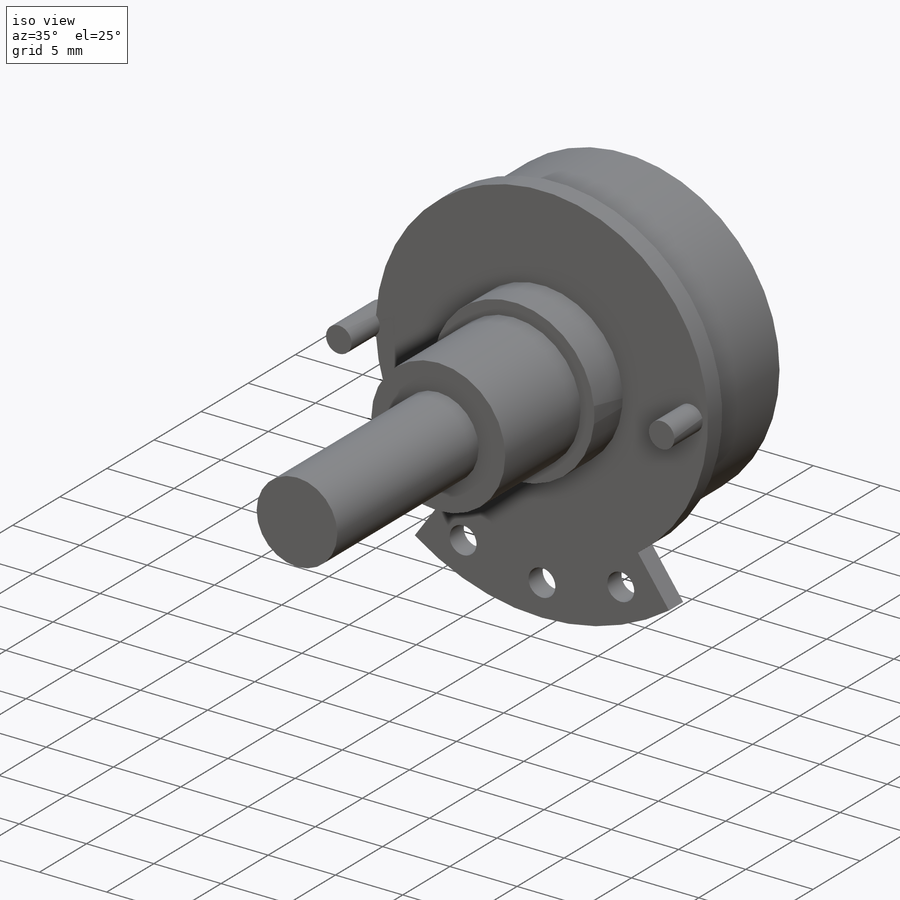
[diagram: iso view]
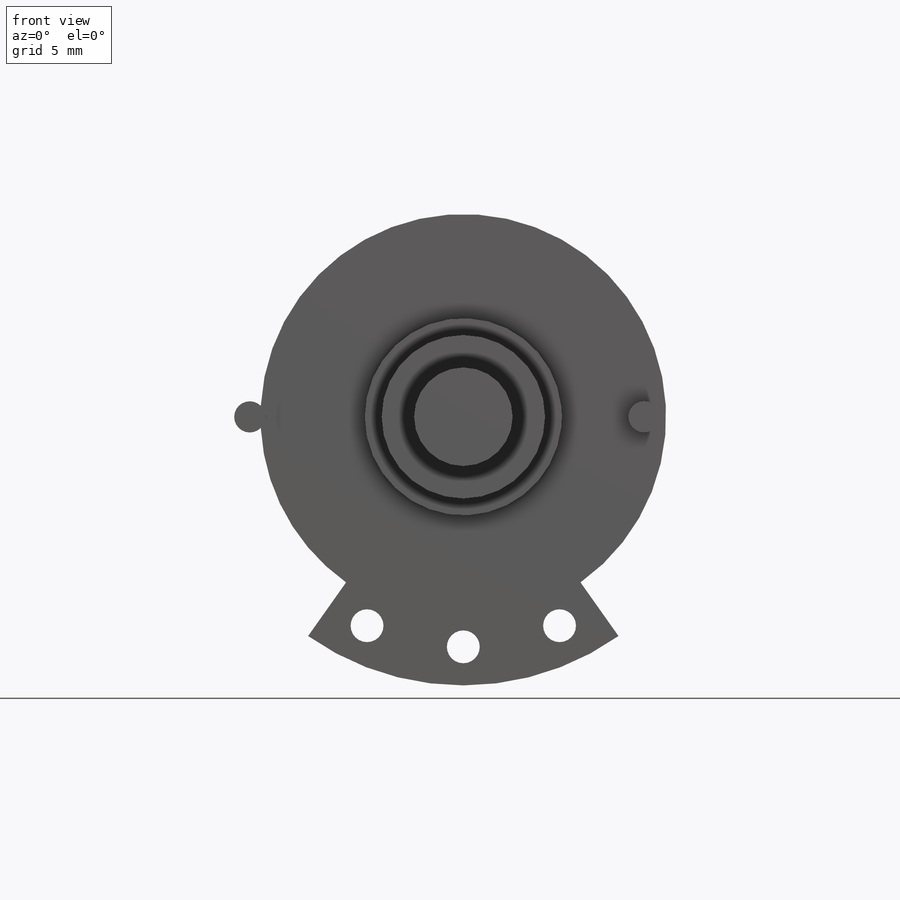
[diagram: front view]
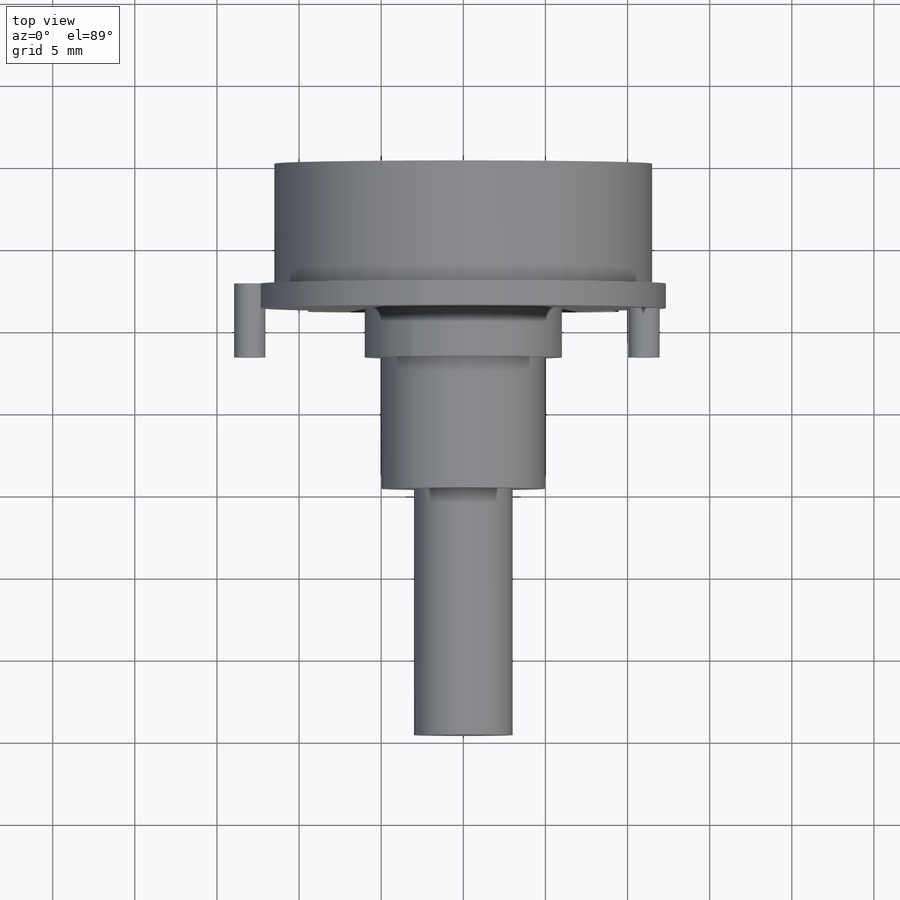
[diagram: top view]
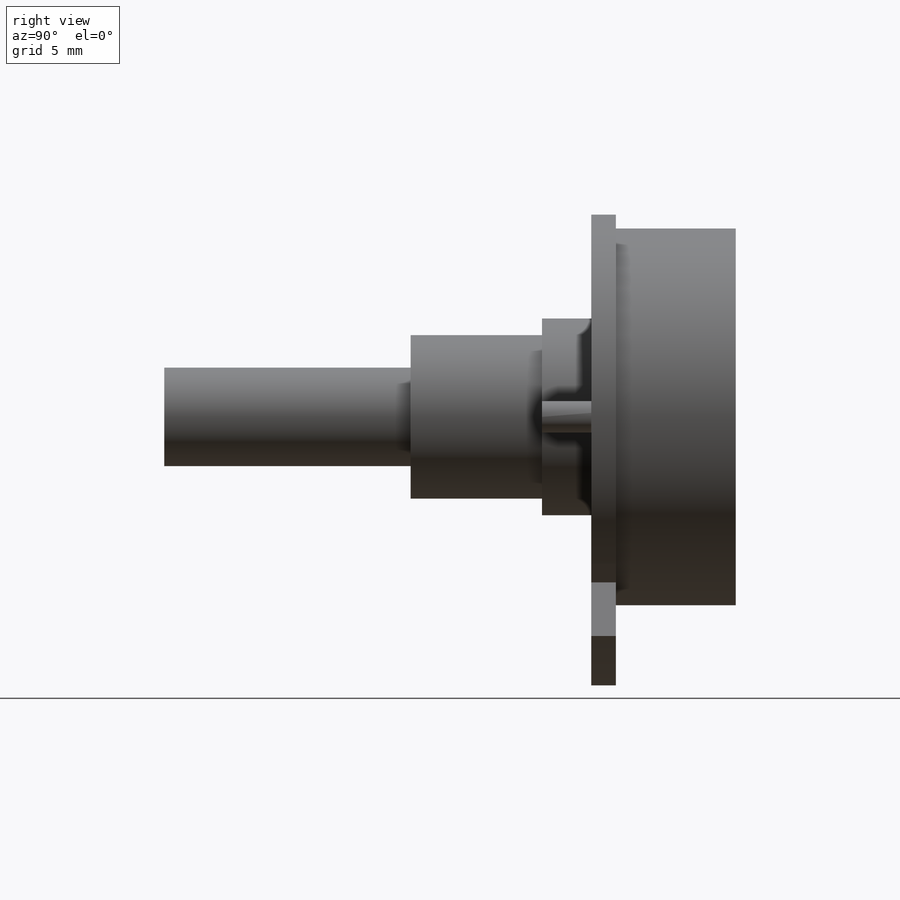
[diagram: right view]
SOLIDWORKS PART (.sldprt)
format: sldprt  version: not decoded by parser v0  size: 222,720 bytes
history: native  units: mm
features: sketch x7, extrude x6, material x1, cut_extrude x1, thread x1 (+14 scaffold rows collapsed)
feature tree (30):
  scaffold x14  (default folders/planes/origin — collapsed)
  material  "Material <not specified>"
  sketch  "Sketch1"  dims[D1=23.0mm]
  extrude  "Extrude1"  Depth=7.3mm
  sketch  "Sketch2"  dims[c1.D1=24.7mm c1.D2=25.0mm c1.D4=16.35mm c1.D3=18.9mm c2.D4=2.5mm c2.D2=4.0mm]
  extrude  "Extrude2"  Depth=1.5mm
  sketch  "Sketch3"  dims[c1.D1=28.0mm c1.D2=2.0mm c1.D3=6.0mm c1.D4=6.0mm c2.D3=~6.475754mm]
  cut_extrude  "Extrude3"  Depth=1.5mm
  sketch  "Sketch4"  dims[D1=12.0mm]
  extrude  "Extrude4"  Depth=3mm
  sketch  "Sketch5"  dims[D1=9.95mm]
  extrude  "Extrude5"  [1 undecoded]
  thread  "Cosmetic Thread6"  Diameter=9mm  [1 undecoded]
  sketch  "Sketch6"  dims[D1=6.0mm]
  extrude  "Extrude6"  Depth=15mm
  sketch  "Sketch7"  dims[c1.D2=1.9mm c1.D3=12.5mm c1.D1=24.0mm c2.D3=11.0mm]
  extrude  "Extrude7"  Depth=3mm
decode coverage: 14 of 15 modeling features carry decoded parameters
note: ~ marks probable driven/reference dimensions
note: 2 parameter values undecoded
note: suppression state not decoded; provenance and decode notes live in map.json
